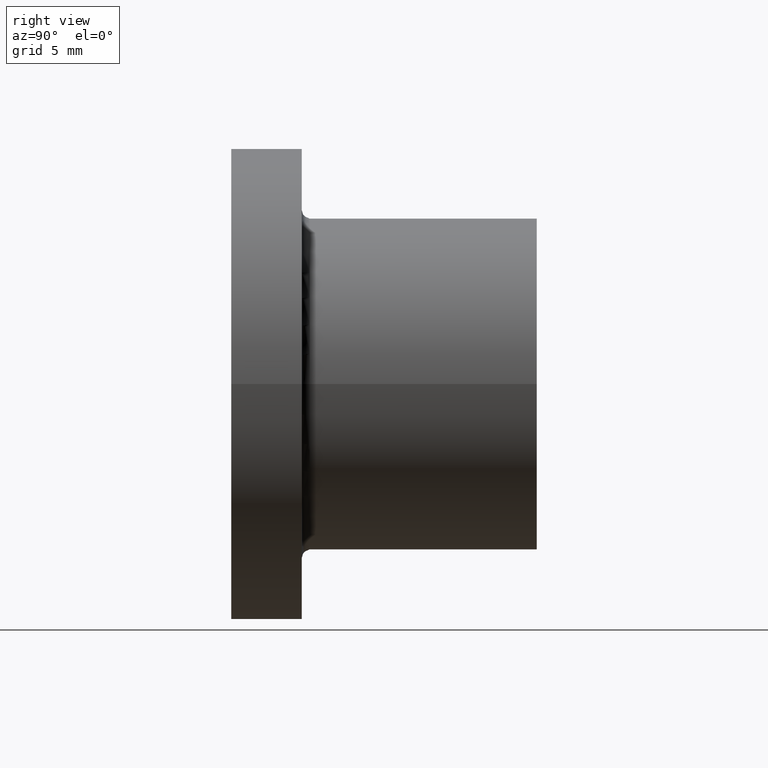
[diagram: clean part render]
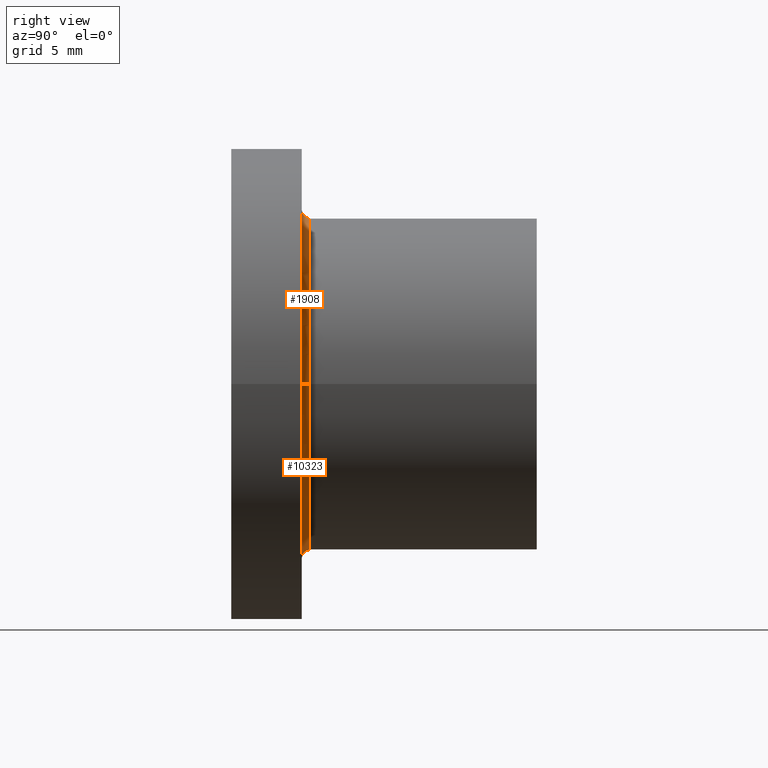
[diagram: same view with one multi-face feature highlighted, each face labeled with its STEP entity id]
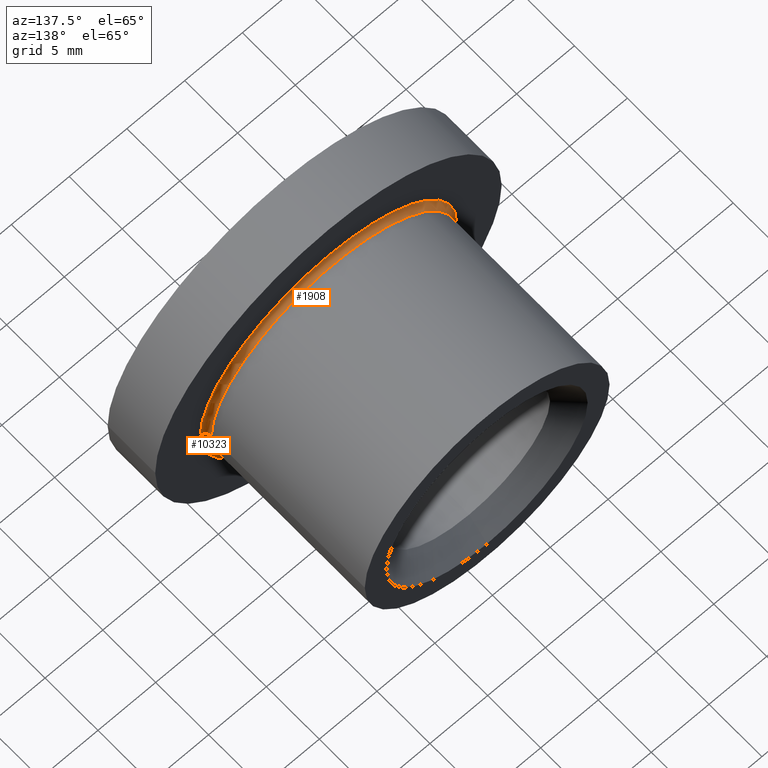
[diagram: same view with one multi-face feature highlighted, each face labeled with its STEP entity id]
A machine part, right view. The highlighted faces form ONE feature: a constant-radius fillet chain: 2 tangent blend faces with common blend radius 0.5 mm. The faces share edges in the B-rep.
A second angle (auxiliary view) of the same feature is appended — it is thin or edge-on in the first view.
Their STEP definitions:
[1] entity #10323 (Torus):
#603 = EDGE_LOOP ( 'NONE', ( #3371, #10376, #7297, #11275 ) ) ;
#2241 = EDGE_CURVE ( 'NONE', #3330, #6799, #12078, .T. ) ;
#2444 = EDGE_CURVE ( 'NONE', #4864, #3330, #3175, .T. ) ;
#2673 = DIRECTION ( 'NONE',  ( 1.000000000000000000, 0.0000000000000000000, 0.0000000000000000000 ) ) ;
#3040 = EDGE_CURVE ( 'NONE', #4864, #4898, #12072, .T. ) ;
#3116 = AXIS2_PLACEMENT_3D ( 'NONE', #8342, #7426, #11266 ) ;
#3175 = CIRCLE ( 'NONE', #3116, 11.10000000000000000 ) ;
#3278 = DIRECTION ( 'NONE',  ( -1.000000000000000000, 0.0000000000000000000, 0.0000000000000000000 ) ) ;
#3330 = VERTEX_POINT ( 'NONE', #9990 ) ;
#3371 = ORIENTED_EDGE ( 'NONE', *, *, #2444, .F. ) ;
#3373 = DIRECTION ( 'NONE',  ( 1.224646799147353200E-016, 3.845537904261174800E-033, 1.000000000000000000 ) ) ;
#3768 = CARTESIAN_POINT ( 'NONE',  ( -11.10000000000000000, 4.999999999999999100, 1.359357947053562200E-015 ) ) ;
#3976 = DIRECTION ( 'NONE',  ( 3.140119997813727100E-017, -1.000000000000000000, 0.0000000000000000000 ) ) ;
#4223 = DIRECTION ( 'NONE',  ( 1.000000000000000000, 0.0000000000000000000, -1.224646799147353500E-016 ) ) ;
#4400 = CARTESIAN_POINT ( 'NONE',  ( 10.60000000000000000, 4.999999999999999100, 1.298125607096194400E-015 ) ) ;
#4864 = VERTEX_POINT ( 'NONE', #8613 ) ;
#4898 = VERTEX_POINT ( 'NONE', #5652 ) ;
#5652 = CARTESIAN_POINT ( 'NONE',  ( -10.60000000000000000, 4.999999999999999100, 0.0000000000000000000 ) ) ;
#5692 = DIRECTION ( 'NONE',  ( -3.140119997813727100E-017, 1.000000000000000000, -0.0000000000000000000 ) ) ;
#5845 = CARTESIAN_POINT ( 'NONE',  ( -1.570059998906863000E-016, 4.999999999999999100, 0.0000000000000000000 ) ) ;
#6481 = CIRCLE ( 'NONE', #7271, 10.60000000000000000 ) ;
#6799 = VERTEX_POINT ( 'NONE', #4400 ) ;
#7191 = AXIS2_PLACEMENT_3D ( 'NONE', #10917, #8979, #3278 ) ;
#7271 = AXIS2_PLACEMENT_3D ( 'NONE', #10439, #5692, #2673 ) ;
#7297 = ORIENTED_EDGE ( 'NONE', *, *, #7667, .F. ) ;
#7338 = TOROIDAL_SURFACE ( 'NONE', #10312, 11.10000000000000000, 0.5000000000000000000 ) ;
#7426 = DIRECTION ( 'NONE',  ( 3.140119997813727100E-017, -1.000000000000000000, 0.0000000000000000000 ) ) ;
#7667 = EDGE_CURVE ( 'NONE', #6799, #4898, #6481, .T. ) ;
#8342 = CARTESIAN_POINT ( 'NONE',  ( -1.413053999016176700E-016, 4.499999999999999100, 0.0000000000000000000 ) ) ;
#8613 = CARTESIAN_POINT ( 'NONE',  ( -11.10000000000000000, 4.499999999999999100, 1.359357947053562200E-015 ) ) ;
#8828 = FACE_OUTER_BOUND ( 'NONE', #603, .T. ) ;
#8979 = DIRECTION ( 'NONE',  ( 0.0000000000000000000, 0.0000000000000000000, -1.000000000000000000 ) ) ;
#9719 = DIRECTION ( 'NONE',  ( 1.000000000000000000, 3.140119997813727100E-017, 0.0000000000000000000 ) ) ;
#9990 = CARTESIAN_POINT ( 'NONE',  ( 11.10000000000000000, 4.499999999999999100, 0.0000000000000000000 ) ) ;
#10312 = AXIS2_PLACEMENT_3D ( 'NONE', #5845, #3976, #9719 ) ;
#10323 = ADVANCED_FACE ( 'NONE', ( #8828 ), #7338, .F. ) ;
#10376 = ORIENTED_EDGE ( 'NONE', *, *, #3040, .T. ) ;
#10439 = CARTESIAN_POINT ( 'NONE',  ( -1.570059998906863000E-016, 4.999999999999999100, 0.0000000000000000000 ) ) ;
#10917 = CARTESIAN_POINT ( 'NONE',  ( 11.10000000000000000, 4.999999999999999100, 0.0000000000000000000 ) ) ;
#11266 = DIRECTION ( 'NONE',  ( 1.000000000000000000, 0.0000000000000000000, 0.0000000000000000000 ) ) ;
#11275 = ORIENTED_EDGE ( 'NONE', *, *, #2241, .F. ) ;
#11871 = AXIS2_PLACEMENT_3D ( 'NONE', #3768, #3373, #4223 ) ;
#12072 = CIRCLE ( 'NONE', #11871, 0.5000000000000004400 ) ;
#12078 = CIRCLE ( 'NONE', #7191, 0.5000000000000004400 ) ;
[2] entity #1908 (Torus):
#815 = ORIENTED_EDGE ( 'NONE', *, *, #3040, .F. ) ;
#1113 = FACE_OUTER_BOUND ( 'NONE', #6396, .T. ) ;
#1201 = ORIENTED_EDGE ( 'NONE', *, *, #5836, .F. ) ;
#1647 = EDGE_CURVE ( 'NONE', #4898, #6799, #6447, .T. ) ;
#1708 = ORIENTED_EDGE ( 'NONE', *, *, #2241, .T. ) ;
#1899 = CIRCLE ( 'NONE', #2250, 11.10000000000000000 ) ;
#1908 = ADVANCED_FACE ( 'NONE', ( #1113 ), #7357, .F. ) ;
#2241 = EDGE_CURVE ( 'NONE', #3330, #6799, #12078, .T. ) ;
#2250 = AXIS2_PLACEMENT_3D ( 'NONE', #4048, #4182, #2291 ) ;
#2291 = DIRECTION ( 'NONE',  ( 1.000000000000000000, 0.0000000000000000000, 0.0000000000000000000 ) ) ;
#2758 = DIRECTION ( 'NONE',  ( 3.140119997813727100E-017, -1.000000000000000000, 0.0000000000000000000 ) ) ;
#3040 = EDGE_CURVE ( 'NONE', #4864, #4898, #12072, .T. ) ;
#3278 = DIRECTION ( 'NONE',  ( -1.000000000000000000, 0.0000000000000000000, 0.0000000000000000000 ) ) ;
#3330 = VERTEX_POINT ( 'NONE', #9990 ) ;
#3373 = DIRECTION ( 'NONE',  ( 1.224646799147353200E-016, 3.845537904261174800E-033, 1.000000000000000000 ) ) ;
#3608 = ORIENTED_EDGE ( 'NONE', *, *, #1647, .F. ) ;
#3768 = CARTESIAN_POINT ( 'NONE',  ( -11.10000000000000000, 4.999999999999999100, 1.359357947053562200E-015 ) ) ;
#4048 = CARTESIAN_POINT ( 'NONE',  ( -1.413053999016176700E-016, 4.499999999999999100, 0.0000000000000000000 ) ) ;
#4182 = DIRECTION ( 'NONE',  ( 3.140119997813727100E-017, -1.000000000000000000, 0.0000000000000000000 ) ) ;
#4223 = DIRECTION ( 'NONE',  ( 1.000000000000000000, 0.0000000000000000000, -1.224646799147353500E-016 ) ) ;
#4400 = CARTESIAN_POINT ( 'NONE',  ( 10.60000000000000000, 4.999999999999999100, 1.298125607096194400E-015 ) ) ;
#4617 = CARTESIAN_POINT ( 'NONE',  ( -1.570059998906863000E-016, 4.999999999999999100, 0.0000000000000000000 ) ) ;
#4660 = CARTESIAN_POINT ( 'NONE',  ( -1.570059998906863000E-016, 4.999999999999999100, 0.0000000000000000000 ) ) ;
#4788 = DIRECTION ( 'NONE',  ( 1.000000000000000000, 0.0000000000000000000, 0.0000000000000000000 ) ) ;
#4864 = VERTEX_POINT ( 'NONE', #8613 ) ;
#4898 = VERTEX_POINT ( 'NONE', #5652 ) ;
#5652 = CARTESIAN_POINT ( 'NONE',  ( -10.60000000000000000, 4.999999999999999100, 0.0000000000000000000 ) ) ;
#5836 = EDGE_CURVE ( 'NONE', #3330, #4864, #1899, .T. ) ;
#6135 = AXIS2_PLACEMENT_3D ( 'NONE', #4660, #10489, #4788 ) ;
#6396 = EDGE_LOOP ( 'NONE', ( #815, #1201, #1708, #3608 ) ) ;
#6447 = CIRCLE ( 'NONE', #6135, 10.60000000000000000 ) ;
#6799 = VERTEX_POINT ( 'NONE', #4400 ) ;
#7191 = AXIS2_PLACEMENT_3D ( 'NONE', #10917, #8979, #3278 ) ;
#7357 = TOROIDAL_SURFACE ( 'NONE', #10123, 11.10000000000000000, 0.5000000000000000000 ) ;
#8613 = CARTESIAN_POINT ( 'NONE',  ( -11.10000000000000000, 4.499999999999999100, 1.359357947053562200E-015 ) ) ;
#8979 = DIRECTION ( 'NONE',  ( 0.0000000000000000000, 0.0000000000000000000, -1.000000000000000000 ) ) ;
#9175 = DIRECTION ( 'NONE',  ( 1.000000000000000000, 3.140119997813727100E-017, 0.0000000000000000000 ) ) ;
#9990 = CARTESIAN_POINT ( 'NONE',  ( 11.10000000000000000, 4.499999999999999100, 0.0000000000000000000 ) ) ;
#10123 = AXIS2_PLACEMENT_3D ( 'NONE', #4617, #2758, #9175 ) ;
#10489 = DIRECTION ( 'NONE',  ( -3.140119997813727100E-017, 1.000000000000000000, -0.0000000000000000000 ) ) ;
#10917 = CARTESIAN_POINT ( 'NONE',  ( 11.10000000000000000, 4.999999999999999100, 0.0000000000000000000 ) ) ;
#11871 = AXIS2_PLACEMENT_3D ( 'NONE', #3768, #3373, #4223 ) ;
#12072 = CIRCLE ( 'NONE', #11871, 0.5000000000000004400 ) ;
#12078 = CIRCLE ( 'NONE', #7191, 0.5000000000000004400 ) ;